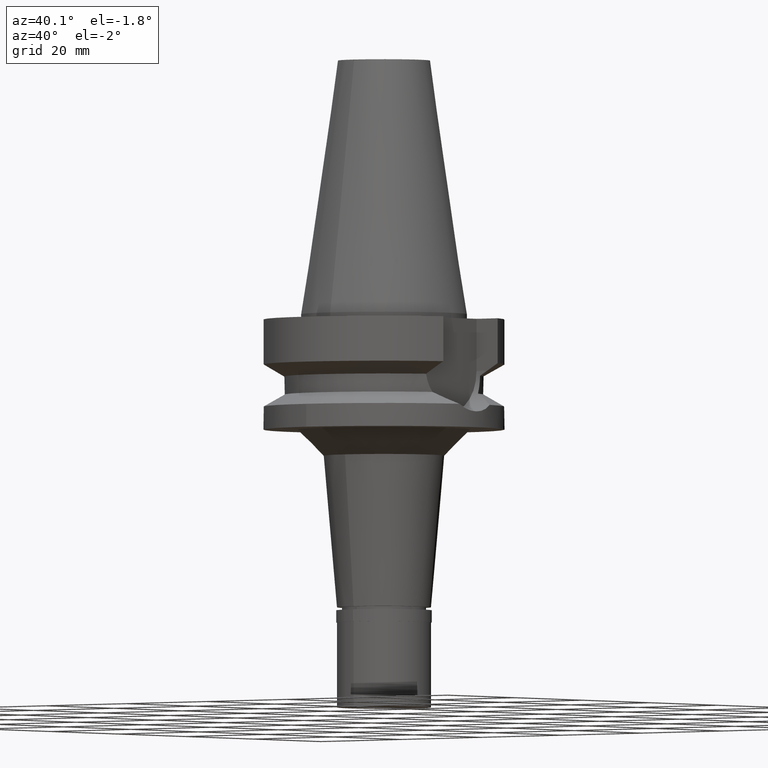
[diagram: clean part render]
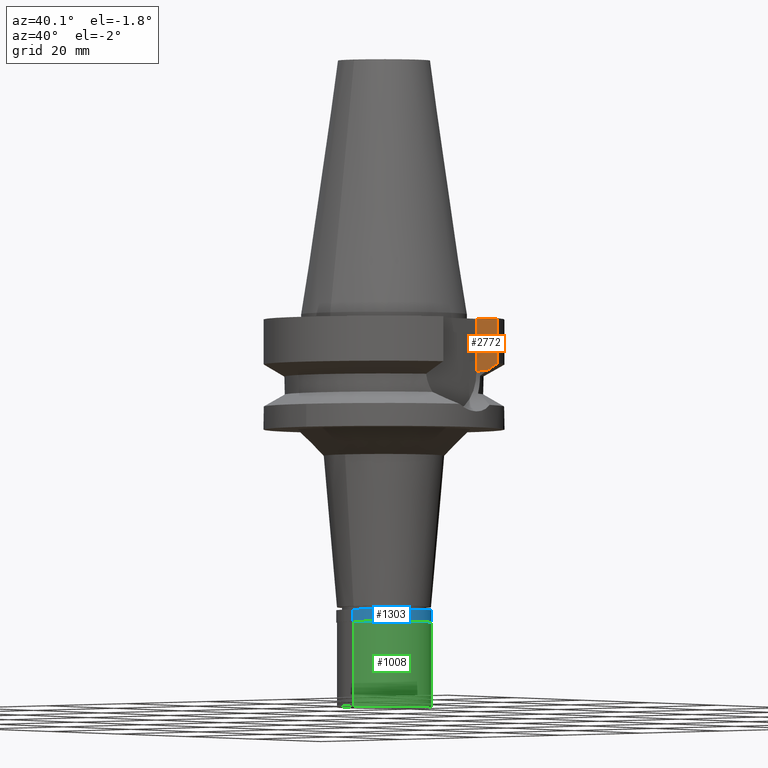
[diagram: same view with three faces highlighted in distinct colors, each labeled with its STEP entity id]
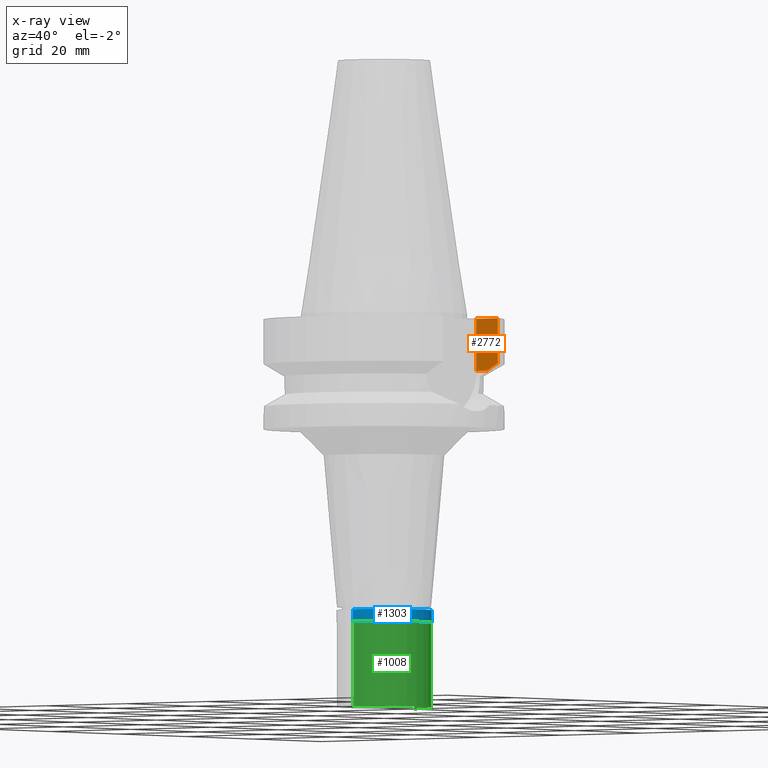
[diagram: x-ray of the same camera — body ghosted, the three highlighted faces saturated]
A machine part, auxiliary view with three faces highlighted in distinct colors.
The next image is the same camera in x-ray (body ghosted, the three faces saturated) — at least one of them is partly hidden behind the body in this view.
Their STEP definitions:

[orange] entity #2772 — the highlighted planar face has unit normal (0, 1, 0).
#8 = ORIENTED_EDGE ( 'NONE', *, *, #2929, .T. ) ;
#160 = DIRECTION ( 'NONE',  ( 0.0000000000000000000, 0.0000000000000000000, -1.000000000000000000 ) ) ;
#194 = CARTESIAN_POINT ( 'NONE',  ( 18.96738966530000070, 8.049994318182998043, -10.95000099923000114 ) ) ;
#362 = CARTESIAN_POINT ( 'NONE',  ( 16.29999999999999716, 8.050000000000000711, -10.94999999999999929 ) ) ;
#364 = CARTESIAN_POINT ( 'NONE',  ( 19.78174442298432112, 8.049991903556993122, -10.51718567366341972 ) ) ;
#439 = CARTESIAN_POINT ( 'NONE',  ( 16.29999999999999716, 8.050000000000000711, -1.000000000000000000 ) ) ;
#536 = VERTEX_POINT ( 'NONE', #1912 ) ;
#773 = PLANE ( 'NONE',  #802 ) ;
#802 = AXIS2_PLACEMENT_3D ( 'NONE', #362, #1461, #2827 ) ;
#810 = EDGE_CURVE ( 'NONE', #2553, #2296, #1011, .T. ) ;
#889 = CARTESIAN_POINT ( 'NONE',  ( 18.96738966530000070, 8.049994318182998043, -10.95000099923000114 ) ) ;
#1011 = LINE ( 'NONE', #2215, #1372 ) ;
#1079 = VERTEX_POINT ( 'NONE', #2673 ) ;
#1102 = DIRECTION ( 'NONE',  ( 0.9999999999976612042, -2.130104035149915589E-06, -3.746083742387856505E-07 ) ) ;
#1154 = ORIENTED_EDGE ( 'NONE', *, *, #2252, .F. ) ;
#1361 = LINE ( 'NONE', #2066, #1769 ) ;
#1370 = EDGE_LOOP ( 'NONE', ( #1643, #1852, #1632, #8, #1154 ) ) ;
#1372 = VECTOR ( 'NONE', #1784, 1000.000000000000114 ) ;
#1374 = VECTOR ( 'NONE', #1102, 1000.000000000000000 ) ;
#1461 = DIRECTION ( 'NONE',  ( -0.0000000000000000000, 1.000000000000000000, 0.0000000000000000000 ) ) ;
#1552 = CARTESIAN_POINT ( 'NONE',  ( 16.29999999999999716, 8.050000000000000711, -10.94999999999999929 ) ) ;
#1632 = ORIENTED_EDGE ( 'NONE', *, *, #2409, .T. ) ;
#1635 = CARTESIAN_POINT ( 'NONE',  ( 21.54524325238000060, 8.049999577379001181, -9.567211146543000311 ) ) ;
#1643 = ORIENTED_EDGE ( 'NONE', *, *, #810, .T. ) ;
#1734 = CARTESIAN_POINT ( 'NONE',  ( 21.54524325238000060, 8.049999577379001181, -9.567211146543000311 ) ) ;
#1769 = VECTOR ( 'NONE', #160, 1000.000000000000000 ) ;
#1781 = LINE ( 'NONE', #439, #2241 ) ;
#1784 = DIRECTION ( 'NONE',  ( -1.843132702715992591E-08, 4.933012910309982838E-08, 0.9999999999999985567 ) ) ;
#1792 = EDGE_CURVE ( 'NONE', #536, #2296, #1781, .T. ) ;
#1793 = DIRECTION ( 'NONE',  ( 1.000000000000000000, 9.380896855521999773E-14, 0.0000000000000000000 ) ) ;
#1852 = ORIENTED_EDGE ( 'NONE', *, *, #1792, .F. ) ;
#1912 = CARTESIAN_POINT ( 'NONE',  ( 16.29999999999999716, 8.050000000000000711, -1.000000000000000000 ) ) ;
#1989 = LINE ( 'NONE', #1552, #1374 ) ;
#2066 = CARTESIAN_POINT ( 'NONE',  ( 16.29999999999999716, 8.050000000000000711, -1.000000000000000000 ) ) ;
#2215 = CARTESIAN_POINT ( 'NONE',  ( 21.54524325238000060, 8.049999577379001181, -9.567211146543000311 ) ) ;
#2241 = VECTOR ( 'NONE', #1793, 1000.000000000000000 ) ;
#2252 = EDGE_CURVE ( 'NONE', #2553, #2336, #2407, .T. ) ;
#2296 = VERTEX_POINT ( 'NONE', #2441 ) ;
#2336 = VERTEX_POINT ( 'NONE', #889 ) ;
#2407 = B_SPLINE_CURVE_WITH_KNOTS ( 'NONE', 3,
 ( #1734, #2630, #364, #194 ),
 .UNSPECIFIED., .F., .F.,
 ( 4, 4 ),
 ( 0.0000000000000000000, 1.000000000000000000 ),
 .UNSPECIFIED. ) ;
#2409 = EDGE_CURVE ( 'NONE', #536, #1079, #1361, .T. ) ;
#2441 = CARTESIAN_POINT ( 'NONE',  ( 21.54524309446999908, 8.050000000000000711, -1.000000000000000000 ) ) ;
#2553 = VERTEX_POINT ( 'NONE', #1635 ) ;
#2630 = CARTESIAN_POINT ( 'NONE',  ( 20.64098922513855783, 8.049999155450747068, -10.05625859774404773 ) ) ;
#2673 = CARTESIAN_POINT ( 'NONE',  ( 16.29999999999999716, 8.050000000000000711, -10.94999999999999929 ) ) ;
#2772 = ADVANCED_FACE ( 'NONE', ( #2838 ), #773, .F. ) ;
#2827 = DIRECTION ( 'NONE',  ( 1.000000000000000000, 0.0000000000000000000, 0.0000000000000000000 ) ) ;
#2838 = FACE_OUTER_BOUND ( 'NONE', #1370, .T. ) ;
#2929 = EDGE_CURVE ( 'NONE', #1079, #2336, #1989, .T. ) ;

[blue] entity #1303 — the highlighted cylindrical surface (partial cylindrical patch) has radius 9.15 mm, axis along (0, 0, 1).
#42 = EDGE_CURVE ( 'NONE', #2657, #1997, #230, .T. ) ;
#137 = CARTESIAN_POINT ( 'NONE',  ( 0.0000000000000000000, 9.150000000000000355, -2.299999999999999822 ) ) ;
#202 = CYLINDRICAL_SURFACE ( 'NONE', #2844, 9.150000000000000355 ) ;
#230 = LINE ( 'NONE', #1152, #1752 ) ;
#306 = ORIENTED_EDGE ( 'NONE', *, *, #774, .T. ) ;
#326 = DIRECTION ( 'NONE',  ( 0.0000000000000000000, 0.0000000000000000000, 1.000000000000000000 ) ) ;
#496 = CARTESIAN_POINT ( 'NONE',  ( 0.0000000000000000000, 0.0000000000000000000, -3.197442310919999608E-14 ) ) ;
#594 = EDGE_LOOP ( 'NONE', ( #306, #1144, #2449, #1368 ) ) ;
#686 = VERTEX_POINT ( 'NONE', #1323 ) ;
#774 = EDGE_CURVE ( 'NONE', #686, #2657, #1803, .T. ) ;
#819 = DIRECTION ( 'NONE',  ( 0.0000000000000000000, 0.0000000000000000000, -1.000000000000000000 ) ) ;
#821 = DIRECTION ( 'NONE',  ( 0.0000000000000000000, -1.000000000000000000, 0.0000000000000000000 ) ) ;
#1144 = ORIENTED_EDGE ( 'NONE', *, *, #42, .T. ) ;
#1152 = CARTESIAN_POINT ( 'NONE',  ( 0.0000000000000000000, -9.150000000000000355, -1.421085471519999843E-14 ) ) ;
#1282 = VECTOR ( 'NONE', #819, 1000.000000000000000 ) ;
#1303 = ADVANCED_FACE ( 'NONE', ( #1799 ), #202, .T. ) ;
#1323 = CARTESIAN_POINT ( 'NONE',  ( 0.0000000000000000000, 9.150000000000000355, -3.197442310919999608E-14 ) ) ;
#1368 = ORIENTED_EDGE ( 'NONE', *, *, #2744, .F. ) ;
#1386 = CIRCLE ( 'NONE', #2611, 9.150000000000000355 ) ;
#1403 = DIRECTION ( 'NONE',  ( 0.0000000000000000000, 1.000000000000000000, 0.0000000000000000000 ) ) ;
#1464 = CARTESIAN_POINT ( 'NONE',  ( 0.0000000000000000000, 0.0000000000000000000, -2.299999999999999822 ) ) ;
#1550 = VERTEX_POINT ( 'NONE', #137 ) ;
#1629 = DIRECTION ( 'NONE',  ( 0.0000000000000000000, 0.0000000000000000000, 1.000000000000000000 ) ) ;
#1752 = VECTOR ( 'NONE', #2083, 1000.000000000000000 ) ;
#1798 = DIRECTION ( 'NONE',  ( 0.0000000000000000000, 1.000000000000000000, 0.0000000000000000000 ) ) ;
#1799 = FACE_OUTER_BOUND ( 'NONE', #594, .T. ) ;
#1803 = CIRCLE ( 'NONE', #1954, 9.150000000000000355 ) ;
#1876 = DIRECTION ( 'NONE',  ( 0.0000000000000000000, 0.0000000000000000000, -1.000000000000000000 ) ) ;
#1890 = CARTESIAN_POINT ( 'NONE',  ( 0.0000000000000000000, -9.150000000000000355, -2.299999999999999822 ) ) ;
#1954 = AXIS2_PLACEMENT_3D ( 'NONE', #496, #1876, #1403 ) ;
#1962 = LINE ( 'NONE', #2641, #1282 ) ;
#1997 = VERTEX_POINT ( 'NONE', #1890 ) ;
#2045 = CARTESIAN_POINT ( 'NONE',  ( 0.0000000000000000000, 0.0000000000000000000, -19.42500000000000071 ) ) ;
#2083 = DIRECTION ( 'NONE',  ( 0.0000000000000000000, 0.0000000000000000000, -1.000000000000000000 ) ) ;
#2224 = EDGE_CURVE ( 'NONE', #1997, #1550, #1386, .T. ) ;
#2449 = ORIENTED_EDGE ( 'NONE', *, *, #2224, .T. ) ;
#2554 = CARTESIAN_POINT ( 'NONE',  ( 0.0000000000000000000, -9.150000000000000355, -3.197442310919999608E-14 ) ) ;
#2611 = AXIS2_PLACEMENT_3D ( 'NONE', #1464, #326, #821 ) ;
#2641 = CARTESIAN_POINT ( 'NONE',  ( 0.0000000000000000000, 9.150000000000000355, -1.421085471519999843E-14 ) ) ;
#2657 = VERTEX_POINT ( 'NONE', #2554 ) ;
#2744 = EDGE_CURVE ( 'NONE', #686, #1550, #1962, .T. ) ;
#2844 = AXIS2_PLACEMENT_3D ( 'NONE', #2045, #1629, #1798 ) ;

[green] entity #1008 — the highlighted cylindrical surface (partial cylindrical patch) has radius 9 mm, axis along (0, 0, 1).
#127 = AXIS2_PLACEMENT_3D ( 'NONE', #1555, #399, #1838 ) ;
#141 = CARTESIAN_POINT ( 'NONE',  ( 0.0000000000000000000, 0.0000000000000000000, -19.42500000000000071 ) ) ;
#281 = CARTESIAN_POINT ( 'NONE',  ( 0.0000000000000000000, -9.000000000000000000, -18.50000000000000000 ) ) ;
#296 = CARTESIAN_POINT ( 'NONE',  ( 0.0000000000000000000, 9.000000000000000000, -2.299999999999999822 ) ) ;
#399 = DIRECTION ( 'NONE',  ( 0.0000000000000000000, 0.0000000000000000000, -1.000000000000000000 ) ) ;
#406 = FACE_OUTER_BOUND ( 'NONE', #1350, .T. ) ;
#494 = ORIENTED_EDGE ( 'NONE', *, *, #2074, .T. ) ;
#591 = DIRECTION ( 'NONE',  ( 0.0000000000000000000, 0.0000000000000000000, 1.000000000000000000 ) ) ;
#601 = EDGE_CURVE ( 'NONE', #2033, #1239, #2168, .T. ) ;
#655 = VECTOR ( 'NONE', #2869, 1000.000000000000000 ) ;
#816 = ORIENTED_EDGE ( 'NONE', *, *, #2211, .F. ) ;
#917 = VERTEX_POINT ( 'NONE', #296 ) ;
#947 = CIRCLE ( 'NONE', #127, 9.000000000000000000 ) ;
#1008 = ADVANCED_FACE ( 'NONE', ( #406 ), #1528, .T. ) ;
#1239 = VERTEX_POINT ( 'NONE', #281 ) ;
#1255 = DIRECTION ( 'NONE',  ( 0.0000000000000000000, -1.000000000000000000, 0.0000000000000000000 ) ) ;
#1259 = DIRECTION ( 'NONE',  ( 0.0000000000000000000, 0.0000000000000000000, -1.000000000000000000 ) ) ;
#1294 = VERTEX_POINT ( 'NONE', #2275 ) ;
#1307 = DIRECTION ( 'NONE',  ( 0.0000000000000000000, 0.0000000000000000000, 1.000000000000000000 ) ) ;
#1334 = AXIS2_PLACEMENT_3D ( 'NONE', #141, #1307, #2039 ) ;
#1350 = EDGE_LOOP ( 'NONE', ( #1919, #1460, #494, #816 ) ) ;
#1418 = CARTESIAN_POINT ( 'NONE',  ( 0.0000000000000000000, -9.000000000000000000, -2.299999999999999822 ) ) ;
#1460 = ORIENTED_EDGE ( 'NONE', *, *, #601, .T. ) ;
#1528 = CYLINDRICAL_SURFACE ( 'NONE', #1334, 9.000000000000000000 ) ;
#1555 = CARTESIAN_POINT ( 'NONE',  ( 0.0000000000000000000, 0.0000000000000000000, -2.299999999999999822 ) ) ;
#1812 = AXIS2_PLACEMENT_3D ( 'NONE', #2645, #591, #1255 ) ;
#1838 = DIRECTION ( 'NONE',  ( 0.0000000000000000000, 1.000000000000000000, 0.0000000000000000000 ) ) ;
#1919 = ORIENTED_EDGE ( 'NONE', *, *, #2350, .T. ) ;
#1948 = LINE ( 'NONE', #2828, #655 ) ;
#1952 = CARTESIAN_POINT ( 'NONE',  ( 0.0000000000000000000, -9.000000000000000000, -2.299999999999999822 ) ) ;
#2033 = VERTEX_POINT ( 'NONE', #1418 ) ;
#2039 = DIRECTION ( 'NONE',  ( 0.0000000000000000000, 1.000000000000000000, 0.0000000000000000000 ) ) ;
#2048 = VECTOR ( 'NONE', #1259, 1000.000000000000000 ) ;
#2074 = EDGE_CURVE ( 'NONE', #1239, #1294, #2099, .T. ) ;
#2099 = CIRCLE ( 'NONE', #1812, 9.000000000000000000 ) ;
#2168 = LINE ( 'NONE', #1952, #2048 ) ;
#2211 = EDGE_CURVE ( 'NONE', #917, #1294, #1948, .T. ) ;
#2275 = CARTESIAN_POINT ( 'NONE',  ( 0.0000000000000000000, 9.000000000000000000, -18.50000000000000000 ) ) ;
#2350 = EDGE_CURVE ( 'NONE', #917, #2033, #947, .T. ) ;
#2645 = CARTESIAN_POINT ( 'NONE',  ( 0.0000000000000000000, 0.0000000000000000000, -18.50000000000000000 ) ) ;
#2828 = CARTESIAN_POINT ( 'NONE',  ( 0.0000000000000000000, 9.000000000000000000, -2.299999999999999822 ) ) ;
#2869 = DIRECTION ( 'NONE',  ( 0.0000000000000000000, 0.0000000000000000000, -1.000000000000000000 ) ) ;